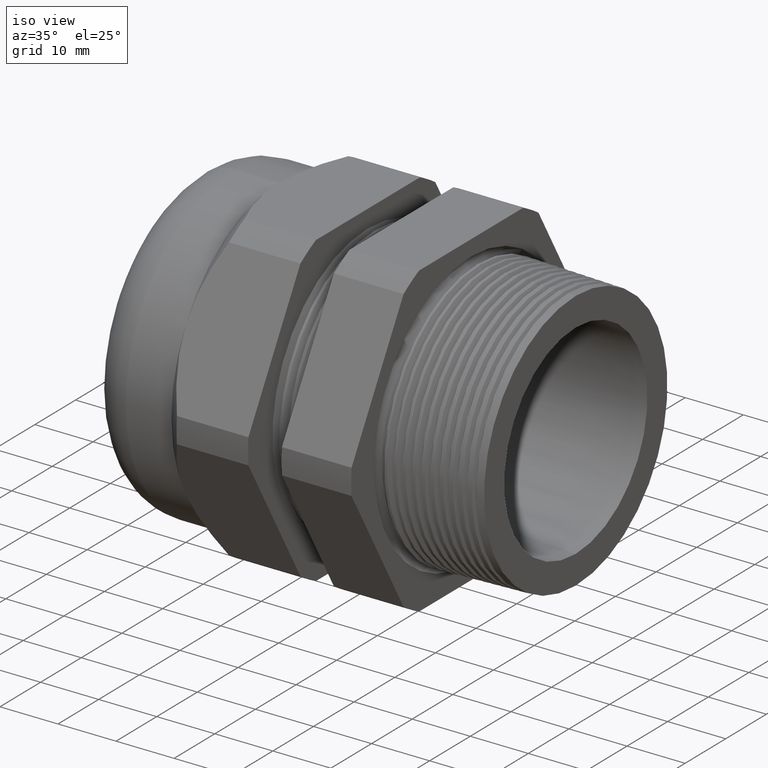
[diagram: clean part render]
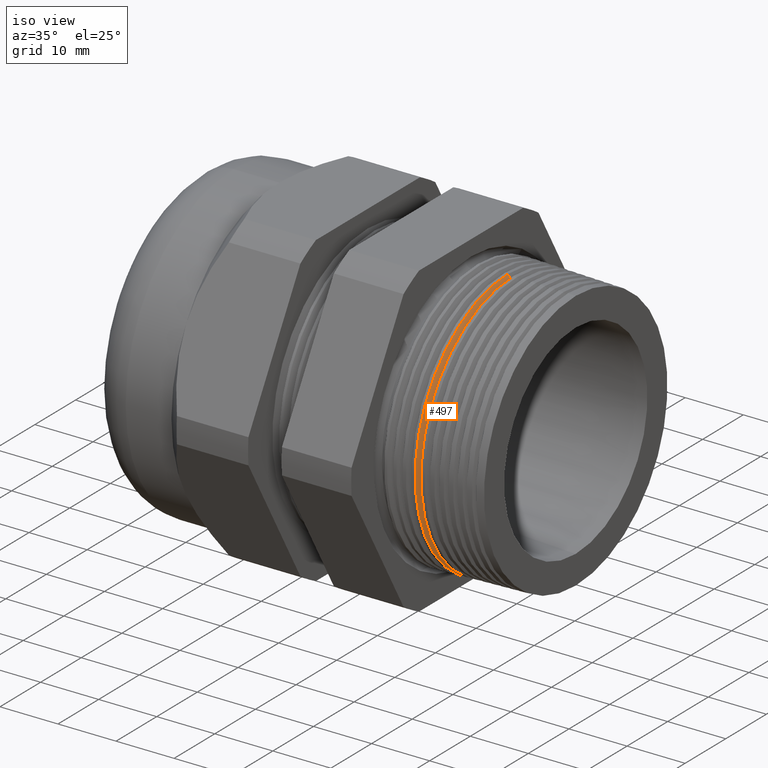
[diagram: same view with one face highlighted and labeled with its STEP entity id]
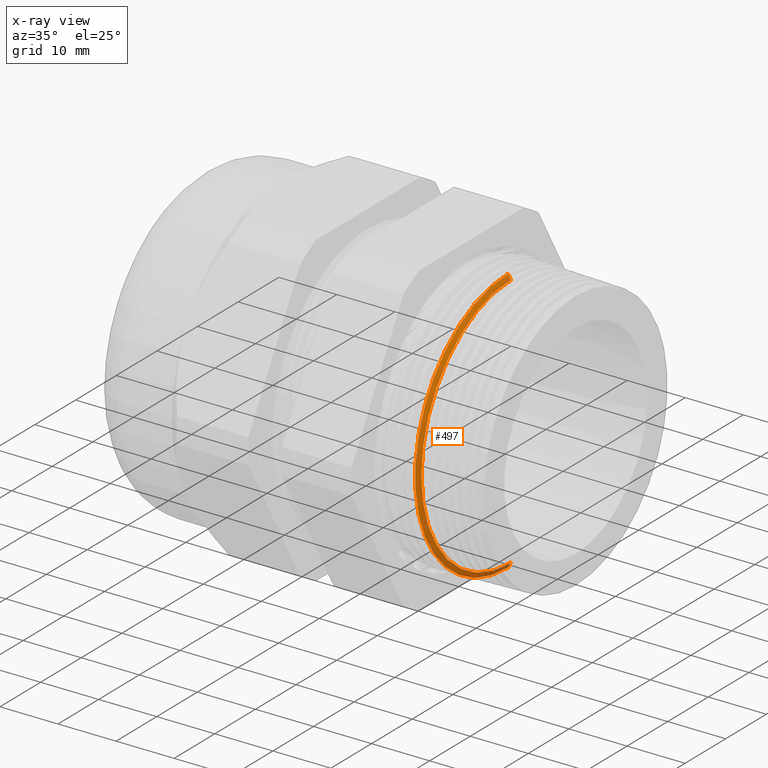
[diagram: x-ray of the same camera — body ghosted, the highlighted face saturated]
A machine part, iso view. The second image highlights one B-rep face of the part: STEP entity #497.
The next image is the same camera in x-ray: the body ghosted, the highlighted face saturated — about 5% of this face is hidden behind the body in this view.
In plain terms, the highlighted conical surface has half-angle 61.5 deg.
Its self-contained STEP definition (entity closure, byte-faithful):
#246 = EDGE_CURVE ( 'NONE', #314, #322, #1669, .T. ) ;
#314 = VERTEX_POINT ( 'NONE', #1846 ) ;
#322 = VERTEX_POINT ( 'NONE', #1832 ) ;
#323 = EDGE_CURVE ( 'NONE', #4018, #314, #1831, .T. ) ;
#327 = EDGE_CURVE ( 'NONE', #4015, #322, #1310, .T. ) ;
#493 = ORIENTED_EDGE ( 'NONE', *, *, #323, .T. ) ;
#494 = EDGE_CURVE ( 'NONE', #4018, #4015, #2119, .T. ) ;
#495 = ORIENTED_EDGE ( 'NONE', *, *, #494, .F. ) ;
#496 = ORIENTED_EDGE ( 'NONE', *, *, #246, .T. ) ;
#497 = ADVANCED_FACE ( 'NONE', ( #2115 ), #2113, .T. ) ;
#498 = ORIENTED_EDGE ( 'NONE', *, *, #327, .F. ) ;
#499 = EDGE_LOOP ( 'NONE', ( #498, #495, #493, #496 ) ) ;
#1310 = LINE ( 'NONE', #1318, #1573 ) ;
#1318 = CARTESIAN_POINT ( 'NONE',  ( -0.06199999999999997900, 1.110367973366375700E-016, -0.9066842571584370300 ) ) ;
#1573 = VECTOR ( 'NONE', #1580, 39.37007874015748100 ) ;
#1580 = DIRECTION ( 'NONE',  ( -0.4771587602596058500, 1.076240564057396400E-016, -0.8788171126619667200 ) ) ;
#1669 = CIRCLE ( 'NONE', #1731, 0.9000964850129971100 ) ;
#1728 = DIRECTION ( 'NONE',  ( 0.0000000000000000000, 0.0000000000000000000, 1.000000000000000000 ) ) ;
#1729 = DIRECTION ( 'NONE',  ( 1.000000000000000000, 0.0000000000000000000, 0.0000000000000000000 ) ) ;
#1730 = CARTESIAN_POINT ( 'NONE',  ( -0.05842313156571408300, 0.0000000000000000000, 0.0000000000000000000 ) ) ;
#1731 = AXIS2_PLACEMENT_3D ( 'NONE', #1730, #1729, #1728 ) ;
#1828 = DIRECTION ( 'NONE',  ( -0.4771587602596058500, 0.0000000000000000000, 0.8788171126619667200 ) ) ;
#1829 = VECTOR ( 'NONE', #1828, 39.37007874015748100 ) ;
#1830 = CARTESIAN_POINT ( 'NONE',  ( -0.06199999999999997900, 0.0000000000000000000, 0.9066842571584370300 ) ) ;
#1831 = LINE ( 'NONE', #1830, #1829 ) ;
#1832 = CARTESIAN_POINT ( 'NONE',  ( -0.05842313156571408300, 1.102658520288492700E-016, -0.9000964850129971100 ) ) ;
#1846 = CARTESIAN_POINT ( 'NONE',  ( -0.05842313156571408300, 0.0000000000000000000, 0.9000964850129971100 ) ) ;
#2113 = CONICAL_SURFACE ( 'NONE', #2114, 0.9066842571584370300, 1.073377489976515600 ) ;
#2114 = AXIS2_PLACEMENT_3D ( 'NONE', #2175, #2174, #2173 ) ;
#2115 = FACE_OUTER_BOUND ( 'NONE', #499, .T. ) ;
#2116 = DIRECTION ( 'NONE',  ( 0.0000000000000000000, 0.0000000000000000000, -1.000000000000000000 ) ) ;
#2117 = DIRECTION ( 'NONE',  ( 1.000000000000000000, 0.0000000000000000000, 0.0000000000000000000 ) ) ;
#2118 = AXIS2_PLACEMENT_3D ( 'NONE', #2124, #2117, #2116 ) ;
#2119 = CIRCLE ( 'NONE', #2118, 0.8660934334333305600 ) ;
#2124 = CARTESIAN_POINT ( 'NONE',  ( -0.03996098090543445700, 0.0000000000000000000, 0.0000000000000000000 ) ) ;
#2173 = DIRECTION ( 'NONE',  ( 0.0000000000000000000, 0.0000000000000000000, 1.000000000000000000 ) ) ;
#2174 = DIRECTION ( 'NONE',  ( -1.000000000000000000, 0.0000000000000000000, 0.0000000000000000000 ) ) ;
#2175 = CARTESIAN_POINT ( 'NONE',  ( -0.06199999999999997900, 0.0000000000000000000, 0.0000000000000000000 ) ) ;
#3520 = CARTESIAN_POINT ( 'NONE',  ( -0.03996098090543445700, 0.0000000000000000000, 0.8660934334333305600 ) ) ;
#3526 = CARTESIAN_POINT ( 'NONE',  ( -0.03996098090543445700, 1.081479415155810100E-016, -0.8660934334333305600 ) ) ;
#4015 = VERTEX_POINT ( 'NONE', #3526 ) ;
#4018 = VERTEX_POINT ( 'NONE', #3520 ) ;